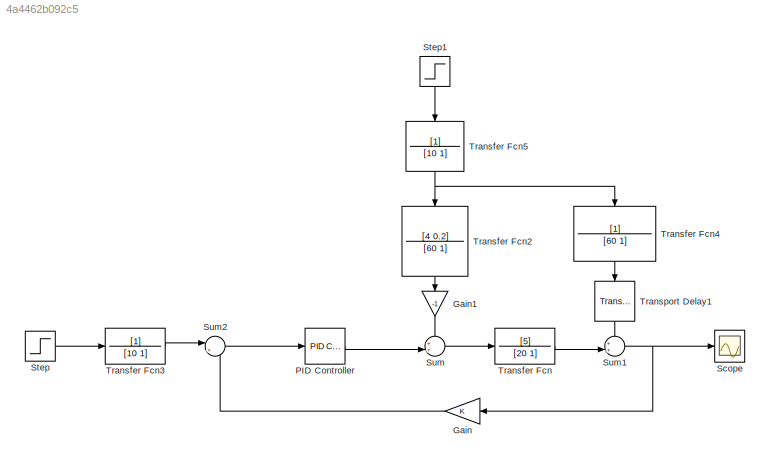
MODEL slx_4a4462b092c5
KIND model
CONFIG AbsTol = auto
CONFIG EnableMultiTasking = off
CONFIG FixedStep = auto
CONFIG MaxStep = auto
CONFIG MinStep = auto
CONFIG RelTol = 1e-3
CONFIG SampleTimeConstraint = Unconstrained
CONFIG SolverName = VariableStepAuto
CONFIG StartTime = 0.0
CONFIG StopTime = 500
BLOCK [Gain] Gain
  NameLocation = top
BLOCK [Gain] Gain1
  Gain = -1
  NameLocation = left
BLOCK [Reference] PID Controller  REF=slpidlib/PID Controller
  LibrarySourceBlock = simulink/Continuous/PID Controller
  SourceBlock = slpidlib/PID Controller
  SourceType = PID 1dof
BLOCK [Scope] Scope
  Floating = off
  NumInputPorts = 1
  ScopeSpecificationString = Simulink.scopes.TimeScopeBlockCfg('CurrentConfiguration', extmgr.ConfigurationSet(extmgr.Configuration('Core','General UI',true),extmgr.Configuration('Core','Source UI',true),extmgr.Configuration('Sources','WiredSimulink',true),extmgr.Configuration('Visuals','Time Domain',true,'SerializedDisplays',{struct('MinYLimReal','-0.12512','MaxYLimReal','1.12605','YLabelReal','','MinYLimMag','0.00000','MaxY...<+1392ch>
BLOCK [Step] Step
  SampleTime = 0
BLOCK [Step] Step1
  NameLocation = left
  SampleTime = 0
  Time = 100
BLOCK [Sum] Sum
  Inputs = ++|
BLOCK [Sum] Sum1
  Inputs = ++|
BLOCK [Sum] Sum2
  Inputs = |+-
BLOCK [TransferFcn] Transfer Fcn
  Denominator = [20 1]
  Numerator = [5]
BLOCK [TransferFcn] Transfer Fcn2
  Denominator = [60 1]
  NameLocation = left
  Numerator = [4 0.2]
BLOCK [TransferFcn] Transfer Fcn3
  Denominator = [10 1]
BLOCK [TransferFcn] Transfer Fcn4
  Denominator = [60 1]
  NameLocation = left
BLOCK [TransferFcn] Transfer Fcn5
  Denominator = [10 1]
  NameLocation = left
BLOCK [TransportDelay] Transport Delay1
  DelayTime = 10
  NameLocation = left
LINE Gain1:1 -> Sum:1
LINE Gain:1 -> Sum2:2
LINE PID Controller:1 -> Sum:2
LINE Step1:1 -> Transfer Fcn5:1
LINE Step:1 -> Transfer Fcn3:1
NET Sum1:1 -> Gain:1, Scope:1
LINE Sum2:1 -> PID Controller:1
LINE Sum:1 -> Transfer Fcn:1
LINE Transfer Fcn2:1 -> Gain1:1
LINE Transfer Fcn3:1 -> Sum2:1
LINE Transfer Fcn4:1 -> Transport Delay1:1
NET Transfer Fcn5:1 -> Transfer Fcn2:1, Transfer Fcn4:1
LINE Transfer Fcn:1 -> Sum1:2
LINE Transport Delay1:1 -> Sum1:1
note: NET lines group one-source signal fan-out (src -> all destinations, sorted); 1:1 wires keep LINE
